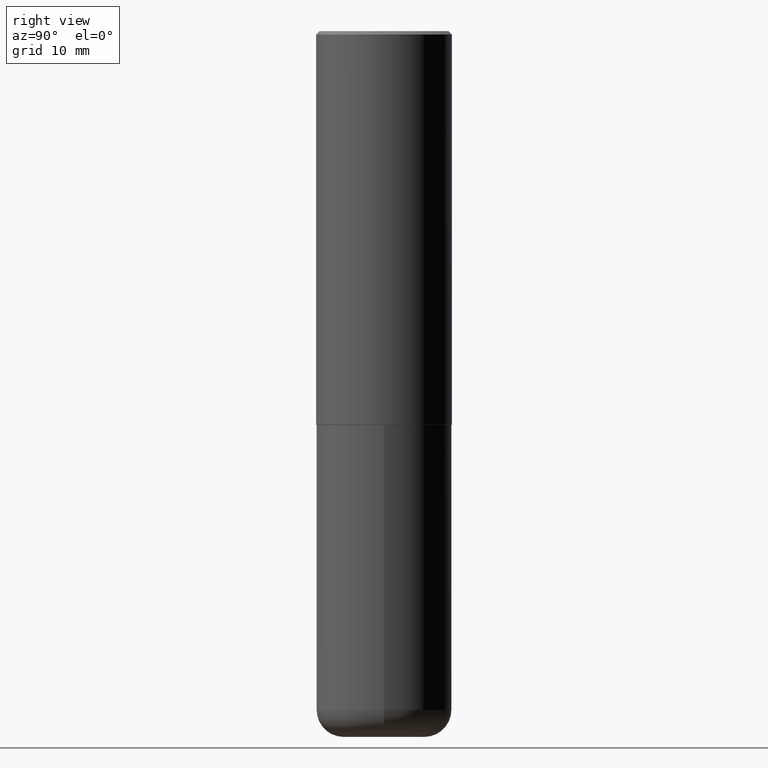
[diagram: clean part render]
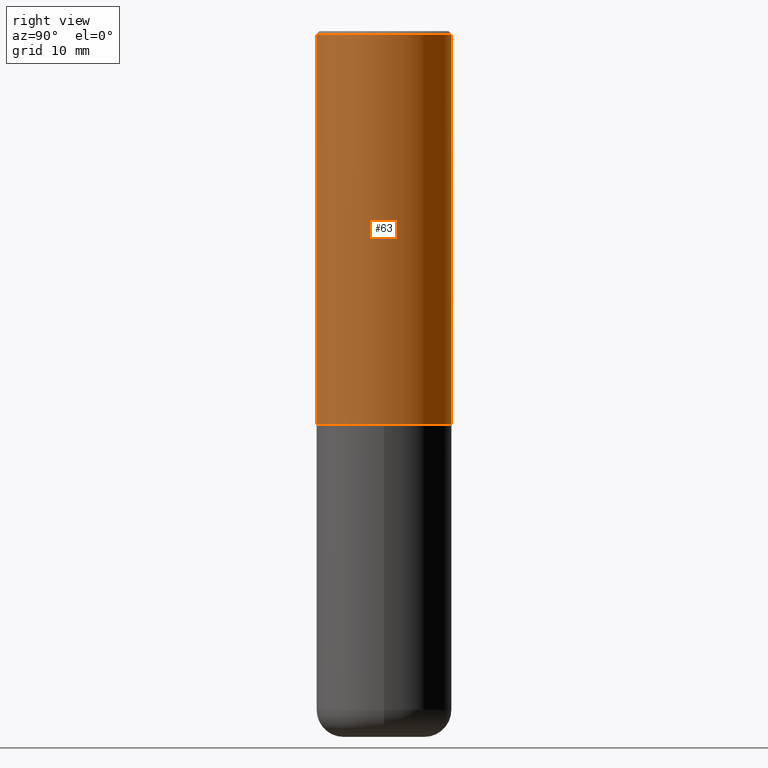
[diagram: same view with one face highlighted and labeled with its STEP entity id]
A machine part, right view. The second image highlights one B-rep face of the part: STEP entity #63.
In plain terms, the highlighted cylindrical surface (partial cylindrical patch) has radius 10 mm, axis along (-0, 0, 1).
Its self-contained STEP definition (entity closure, byte-faithful):
#25 = CIRCLE ( 'NONE', #393, 0.3937000000000000499 ) ;
#36 = DIRECTION ( 'NONE',  ( -6.982962677686265922E-15, -1.000000000000000000, 3.490275841951731758E-15 ) ) ;
#39 = CARTESIAN_POINT ( 'NONE',  ( -2.749192406205084005E-15, -0.3937000000000001609, 1.374121598976397400E-15 ) ) ;
#47 = EDGE_LOOP ( 'NONE', ( #206, #262, #120, #126 ) ) ;
#48 = DIRECTION ( 'NONE',  ( -2.446310600165217615E-29, 3.490275841951731758E-15, 1.000000000000000000 ) ) ;
#59 = VECTOR ( 'NONE', #319, 39.37007874015748143 ) ;
#63 = ADVANCED_FACE ( 'NONE', ( #237 ), #328, .T. ) ;
#75 = CIRCLE ( 'NONE', #306, 0.3937000000000002720 ) ;
#78 = EDGE_CURVE ( 'NONE', #150, #295, #25, .T. ) ;
#80 = LINE ( 'NONE', #209, #161 ) ;
#92 = AXIS2_PLACEMENT_3D ( 'NONE', #135, #325, #36 ) ;
#94 = EDGE_CURVE ( 'NONE', #329, #150, #128, .T. ) ;
#98 = CARTESIAN_POINT ( 'NONE',  ( 2.797406750687543580E-15, 0.3936999999999923339, -2.282500000000001528 ) ) ;
#120 = ORIENTED_EDGE ( 'NONE', *, *, #78, .F. ) ;
#126 = ORIENTED_EDGE ( 'NONE', *, *, #94, .F. ) ;
#128 = LINE ( 'NONE', #39, #59 ) ;
#132 = CARTESIAN_POINT ( 'NONE',  ( 4.892621200330456179E-31, -6.980551683903491963E-17, -0.02000000000000008715 ) ) ;
#135 = CARTESIAN_POINT ( 'NONE',  ( 0.000000000000000000, 0.000000000000000000, 0.000000000000000000 ) ) ;
#141 = DIRECTION ( 'NONE',  ( -2.446310600165217895E-29, 3.490275841951731363E-15, 1.000000000000000000 ) ) ;
#144 = DIRECTION ( 'NONE',  ( -6.982962677686265133E-15, -1.000000000000000000, 3.491137977679279424E-15 ) ) ;
#150 = VERTEX_POINT ( 'NONE', #355 ) ;
#161 = VECTOR ( 'NONE', #141, 39.37007874015748143 ) ;
#204 = EDGE_CURVE ( 'NONE', #320, #295, #80, .T. ) ;
#206 = ORIENTED_EDGE ( 'NONE', *, *, #365, .T. ) ;
#209 = CARTESIAN_POINT ( 'NONE',  ( 2.797406750687515181E-15, 0.3937000000000001609, -1.374121598976397400E-15 ) ) ;
#219 = CARTESIAN_POINT ( 'NONE',  ( -2.749192406205029180E-15, -0.3937000000000082656, -2.282499999999998863 ) ) ;
#237 = FACE_OUTER_BOUND ( 'NONE', #47, .T. ) ;
#257 = DIRECTION ( 'NONE',  ( -6.982962677686265922E-15, -1.000000000000000000, 3.469453890861393601E-15 ) ) ;
#262 = ORIENTED_EDGE ( 'NONE', *, *, #204, .T. ) ;
#295 = VERTEX_POINT ( 'NONE', #346 ) ;
#306 = AXIS2_PLACEMENT_3D ( 'NONE', #404, #48, #257 ) ;
#319 = DIRECTION ( 'NONE',  ( -2.446310600165217895E-29, 3.490275841951731363E-15, 1.000000000000000000 ) ) ;
#320 = VERTEX_POINT ( 'NONE', #98 ) ;
#325 = DIRECTION ( 'NONE',  ( -2.446310600165217615E-29, 3.490275841951731758E-15, 1.000000000000000000 ) ) ;
#328 = CYLINDRICAL_SURFACE ( 'NONE', #92, 0.3937000000000001609 ) ;
#329 = VERTEX_POINT ( 'NONE', #219 ) ;
#340 = DIRECTION ( 'NONE',  ( -2.446310600165217615E-29, 3.490275841951731758E-15, 1.000000000000000000 ) ) ;
#346 = CARTESIAN_POINT ( 'NONE',  ( 2.749192406205083217E-15, 0.3936999999999999389, -0.02000000000000146105 ) ) ;
#355 = CARTESIAN_POINT ( 'NONE',  ( -2.700978061722651252E-15, -0.3937000000000001054, -0.01999999999999870978 ) ) ;
#365 = EDGE_CURVE ( 'NONE', #329, #320, #75, .T. ) ;
#393 = AXIS2_PLACEMENT_3D ( 'NONE', #132, #340, #144 ) ;
#404 = CARTESIAN_POINT ( 'NONE',  ( 5.583703944877110670E-29, -7.966554609254827797E-15, -2.282500000000000195 ) ) ;